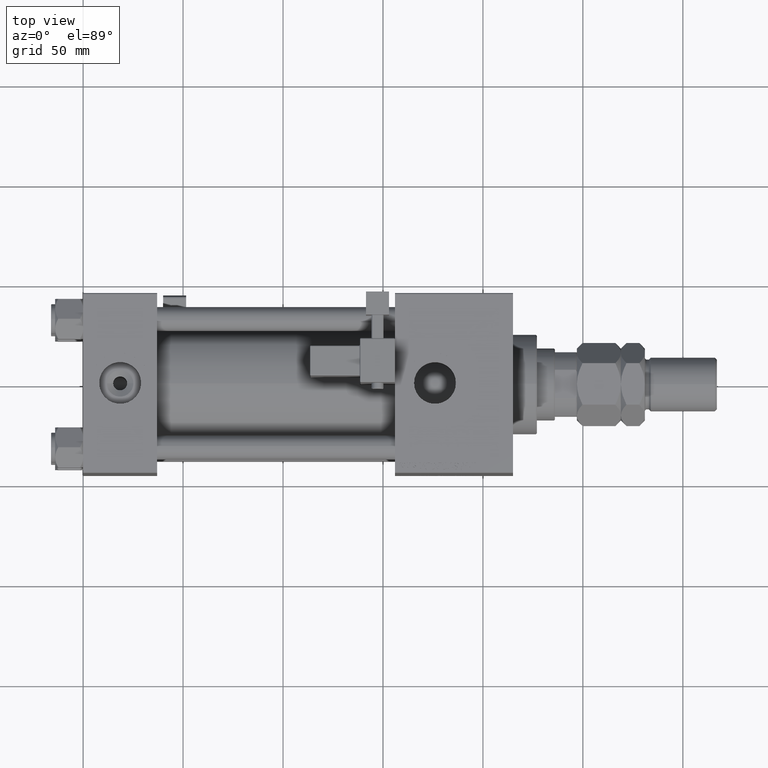
[diagram: clean part render]
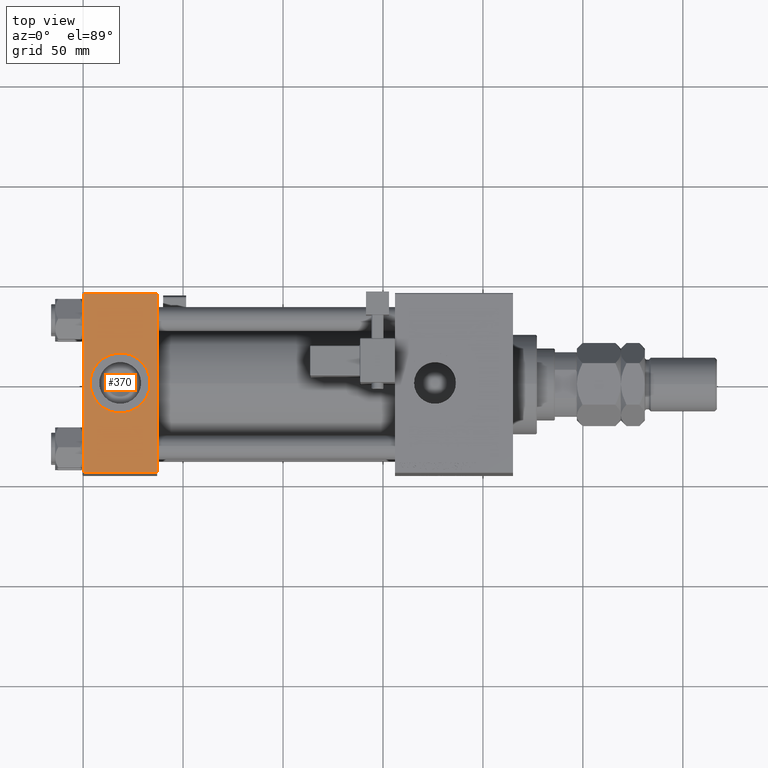
[diagram: same view with one face highlighted and labeled with its STEP entity id]
A machine part, top view. The second image highlights one B-rep face of the part: STEP entity #370.
In plain terms, the highlighted planar face has unit normal (0, 0, -1).
Its self-contained STEP definition (entity closure, byte-faithful):
#106 = EDGE_CURVE ( 'NONE', #45087, #48197, #52192, .T. ) ;
#370 = ADVANCED_FACE ( 'NONE', ( #37630, #28105 ), #49116, .F. ) ;
#2314 = CARTESIAN_POINT ( 'NONE',  ( 0.000000000000000000, 44.99999999999998579, 45.00000000000001421 ) ) ;
#4377 = AXIS2_PLACEMENT_3D ( 'NONE', #28986, #37968, #8450 ) ;
#5432 = CARTESIAN_POINT ( 'NONE',  ( 0.000000000000000000, 44.49999999999998579, 45.00000000000001421 ) ) ;
#6484 = CARTESIAN_POINT ( 'NONE',  ( 0.000000000000000000, -44.49999999999995737, 45.00000000000000000 ) ) ;
#7154 = ORIENTED_EDGE ( 'NONE', *, *, #18185, .F. ) ;
#8450 = DIRECTION ( 'NONE',  ( 1.000000000000000000, 0.000000000000000000, 0.000000000000000000 ) ) ;
#9277 = AXIS2_PLACEMENT_3D ( 'NONE', #16076, #28640, #45288 ) ;
#10216 = CIRCLE ( 'NONE', #33745, 15.00000000000000355 ) ;
#13111 = CIRCLE ( 'NONE', #4377, 15.00000000000000355 ) ;
#14695 = CARTESIAN_POINT ( 'NONE',  ( 0.000000000000000000, 44.49999999999998579, 45.00000000000001421 ) ) ;
#14778 = DIRECTION ( 'NONE',  ( 1.000000000000000000, 0.000000000000000000, 0.000000000000000000 ) ) ;
#16076 = CARTESIAN_POINT ( 'NONE',  ( 37.00000000000000000, 44.99999999999998579, 45.00000000000001421 ) ) ;
#18185 = EDGE_CURVE ( 'NONE', #23567, #49345, #10216, .T. ) ;
#18626 = ORIENTED_EDGE ( 'NONE', *, *, #29103, .T. ) ;
#20687 = DIRECTION ( 'NONE',  ( -1.000000000000000000, 0.000000000000000000, 0.000000000000000000 ) ) ;
#21320 = VERTEX_POINT ( 'NONE', #5432 ) ;
#22148 = CARTESIAN_POINT ( 'NONE',  ( 3.499999999999997780, -6.836647181163008250E-15, 45.00000000000000711 ) ) ;
#22976 = DIRECTION ( 'NONE',  ( 0.000000000000000000, -1.000000000000000000, -1.541976423090495387E-16 ) ) ;
#23567 = VERTEX_POINT ( 'NONE', #52643 ) ;
#23668 = DIRECTION ( 'NONE',  ( 0.000000000000000000, -1.000000000000000000, -1.541976423090495387E-16 ) ) ;
#23790 = LINE ( 'NONE', #31162, #26480 ) ;
#25263 = DIRECTION ( 'NONE',  ( 0.000000000000000000, 0.000000000000000000, 1.000000000000000000 ) ) ;
#25525 = EDGE_CURVE ( 'NONE', #49345, #23567, #13111, .T. ) ;
#26354 = CARTESIAN_POINT ( 'NONE',  ( 18.50000000000000000, -8.673617379884038628E-15, 45.00000000000000711 ) ) ;
#26480 = VECTOR ( 'NONE', #22976, 1000.000000000000000 ) ;
#26907 = EDGE_LOOP ( 'NONE', ( #7154, #35190 ) ) ;
#28105 = FACE_OUTER_BOUND ( 'NONE', #38533, .T. ) ;
#28640 = DIRECTION ( 'NONE',  ( 0.000000000000000000, 1.541976423090495633E-16, -1.000000000000000000 ) ) ;
#28986 = CARTESIAN_POINT ( 'NONE',  ( 18.50000000000000000, -8.673617379884038628E-15, 45.00000000000000711 ) ) ;
#29103 = EDGE_CURVE ( 'NONE', #21320, #45087, #43871, .T. ) ;
#30026 = ORIENTED_EDGE ( 'NONE', *, *, #53277, .F. ) ;
#30700 = VECTOR ( 'NONE', #20687, 1000.000000000000000 ) ;
#31162 = CARTESIAN_POINT ( 'NONE',  ( 37.00000000000000000, 44.99999999999998579, 45.00000000000001421 ) ) ;
#31193 = CARTESIAN_POINT ( 'NONE',  ( 37.00000000000000000, -44.49999999999995737, 45.00000000000000000 ) ) ;
#31732 = CARTESIAN_POINT ( 'NONE',  ( 37.00000000000000000, -44.49999999999998579, 45.00000000000000000 ) ) ;
#32199 = EDGE_CURVE ( 'NONE', #44284, #21320, #52104, .T. ) ;
#33745 = AXIS2_PLACEMENT_3D ( 'NONE', #26354, #25263, #50926 ) ;
#35190 = ORIENTED_EDGE ( 'NONE', *, *, #25525, .F. ) ;
#37630 = FACE_BOUND ( 'NONE', #26907, .T. ) ;
#37968 = DIRECTION ( 'NONE',  ( 0.000000000000000000, 0.000000000000000000, 1.000000000000000000 ) ) ;
#38533 = EDGE_LOOP ( 'NONE', ( #18626, #50055, #30026, #42734 ) ) ;
#41528 = VECTOR ( 'NONE', #14778, 1000.000000000000000 ) ;
#42734 = ORIENTED_EDGE ( 'NONE', *, *, #32199, .T. ) ;
#43871 = LINE ( 'NONE', #2314, #48908 ) ;
#44284 = VERTEX_POINT ( 'NONE', #45906 ) ;
#45087 = VERTEX_POINT ( 'NONE', #6484 ) ;
#45288 = DIRECTION ( 'NONE',  ( 0.000000000000000000, 1.000000000000000000, 1.541976423090495633E-16 ) ) ;
#45906 = CARTESIAN_POINT ( 'NONE',  ( 37.00000000000000000, 44.49999999999998579, 45.00000000000001421 ) ) ;
#48197 = VERTEX_POINT ( 'NONE', #31193 ) ;
#48908 = VECTOR ( 'NONE', #23668, 1000.000000000000000 ) ;
#49116 = PLANE ( 'NONE',  #9277 ) ;
#49345 = VERTEX_POINT ( 'NONE', #22148 ) ;
#50055 = ORIENTED_EDGE ( 'NONE', *, *, #106, .T. ) ;
#50926 = DIRECTION ( 'NONE',  ( 1.000000000000000000, 0.000000000000000000, 0.000000000000000000 ) ) ;
#52104 = LINE ( 'NONE', #14695, #30700 ) ;
#52192 = LINE ( 'NONE', #31732, #41528 ) ;
#52643 = CARTESIAN_POINT ( 'NONE',  ( 33.50000000000000000, -8.673617379884038628E-15, 45.00000000000000711 ) ) ;
#53277 = EDGE_CURVE ( 'NONE', #44284, #48197, #23790, .T. ) ;